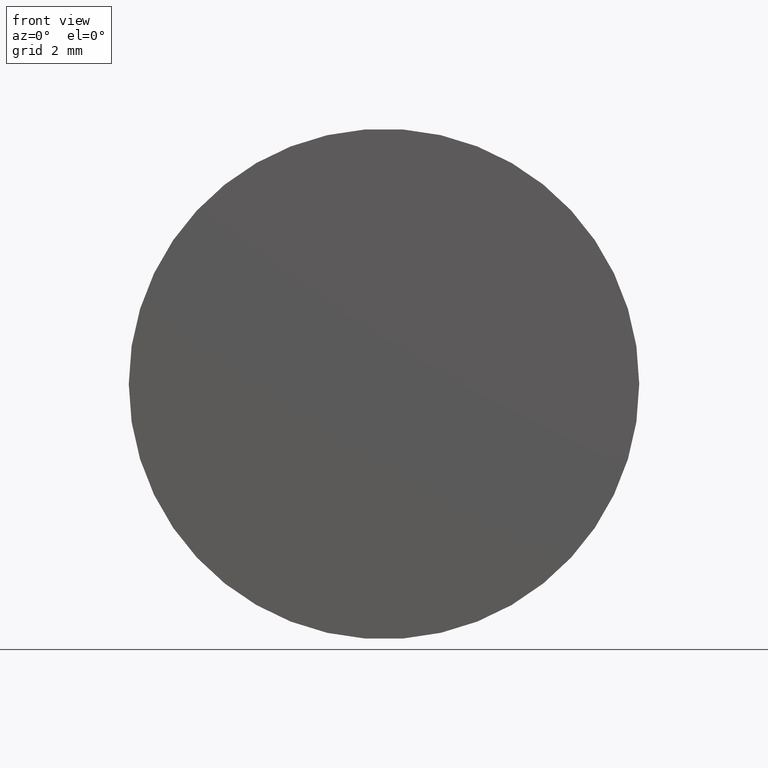
[diagram: clean part render]
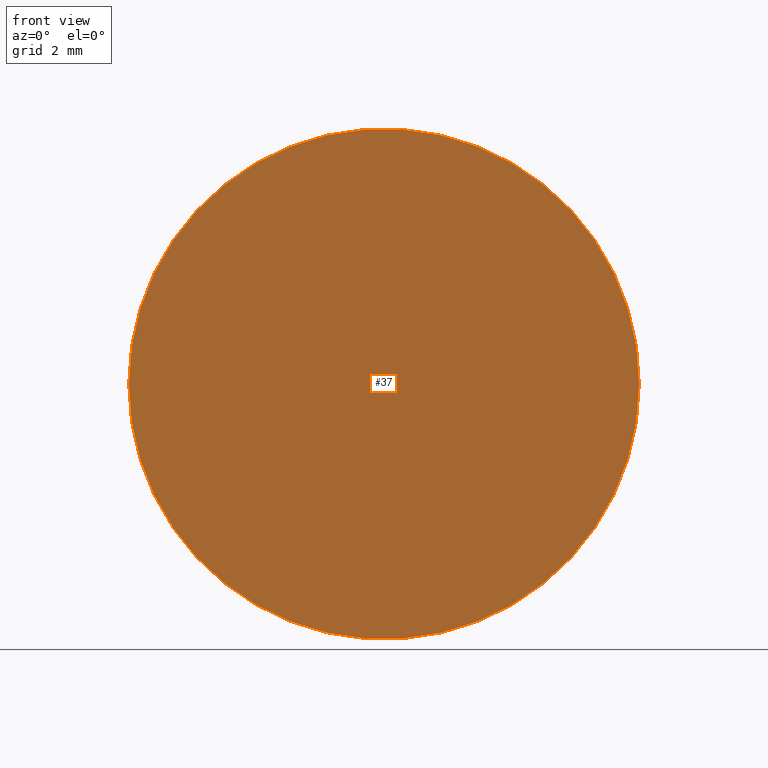
[diagram: same view with one face highlighted and labeled with its STEP entity id]
A machine part, front view. The second image highlights one B-rep face of the part: STEP entity #37.
In plain terms, the highlighted planar face has unit normal (0, 1, 0).
Its self-contained STEP definition (entity closure, byte-faithful):
#15=PLANE('',#44);
#19=FACE_OUTER_BOUND('',#23,.T.);
#23=EDGE_LOOP('',(#33));
#25=CIRCLE('',#42,6.2);
#27=VERTEX_POINT('',#60);
#29=EDGE_CURVE('',#27,#27,#25,.T.);
#33=ORIENTED_EDGE('',*,*,#29,.T.);
#37=ADVANCED_FACE('',(#19),#15,.F.);
#42=AXIS2_PLACEMENT_3D('',#61,#50,#51);
#44=AXIS2_PLACEMENT_3D('',#64,#54,#55);
#50=DIRECTION('center_axis',(0.,-1.,0.));
#51=DIRECTION('ref_axis',(1.,0.,0.));
#54=DIRECTION('center_axis',(0.,1.,0.));
#55=DIRECTION('ref_axis',(0.,0.,1.));
#60=CARTESIAN_POINT('',(-6.2,-3.,7.59281015471359E-16));
#61=CARTESIAN_POINT('Origin',(0.,-3.,0.));
#64=CARTESIAN_POINT('Origin',(3.61720467586365E-16,-3.,-1.49223524815209E-16));